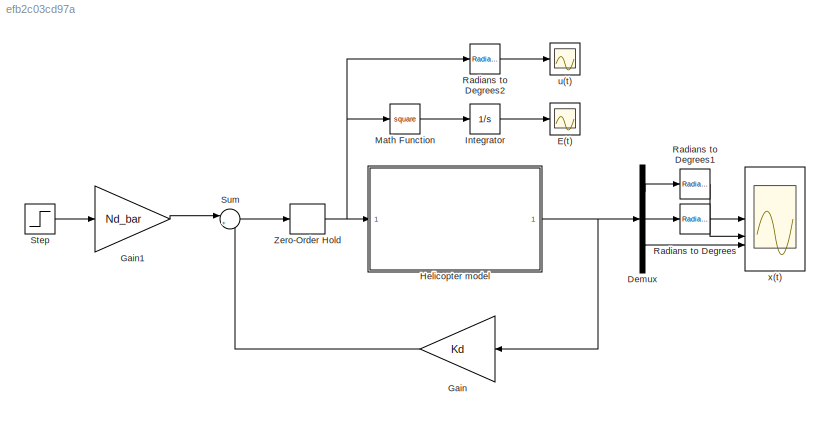
MODEL slx_efb2c03cd97a
KIND model
CONFIG AbsTol = auto
CONFIG EnableMultiTasking = off
CONFIG FixedStep = 0.01
CONFIG MaxStep = auto
CONFIG MinStep = auto
CONFIG RelTol = 1e-3
CONFIG SampleTimeConstraint = Unconstrained
CONFIG SolverName = ode3
CONFIG StartTime = 0.0
CONFIG StopTime = 20
BLOCK [Demux] Demux
  Outputs = 3
BLOCK [Scope] E(t)
  Floating = off
  NumInputPorts = 1
  ScopeSpecificationString = Simulink.scopes.TimeScopeBlockCfg('CurrentConfiguration', extmgr.ConfigurationSet(extmgr.Configuration('Core','General UI',true),extmgr.Configuration('Core','Source UI',true),extmgr.Configuration('Sources','WiredSimulink',true,'DataLoggingVariableName','ScopeData2'),extmgr.Configuration('Visuals','Time Domain',true,'SerializedDisplays',{struct('MinYLimReal','-0.02578','MaxYLimReal','0.23198','YLab...<+1424ch>
BLOCK [Gain] Gain
  Gain = Kd
  Multiplication = Matrix(K*u) (u vector)
BLOCK [Gain] Gain1
  Gain = Nd_bar
  Multiplication = Matrix(K*u) (u vector)
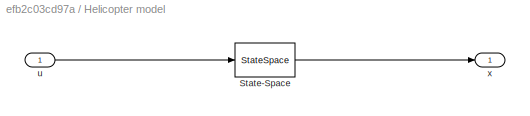
BLOCK [SubSystem] Helicopter model
BLOCK [StateSpace] Helicopter model/State-Space
  A = A
  B = B
  C = eye(3)
  D = zeros(3,1)
  InitialCondition = [0;0;0]
BLOCK [Inport] Helicopter model/u
BLOCK [Outport] Helicopter model/x
BLOCK [Integrator] Integrator
BLOCK [Math] Math Function
  Operator = square
BLOCK [Reference] Radians to Degrees  REF=simulink_extras/Transformations/Radians
to Degrees
  SourceBlock = simulink_extras/Transformations/Radians\nto Degrees
  SourceType = RadiansToDegrees
BLOCK [Reference] Radians to Degrees1  REF=simulink_extras/Transformations/Radians
to Degrees
  SourceBlock = simulink_extras/Transformations/Radians\nto Degrees
  SourceType = RadiansToDegrees
BLOCK [Reference] Radians to Degrees2  REF=simulink_extras/Transformations/Radians
to Degrees
  SourceBlock = simulink_extras/Transformations/Radians\nto Degrees
  SourceType = RadiansToDegrees
BLOCK [Step] Step
  After = 10
  SampleTime = 0
BLOCK [Sum] Sum
  Inputs = |+-
BLOCK [ZeroOrderHold] Zero-Order Hold
  SampleTime = 10*Ts
BLOCK [Scope] u(t)
  Floating = off
  NumInputPorts = 1
  ScopeSpecificationString = Simulink.scopes.TimeScopeBlockCfg('CurrentConfiguration', extmgr.ConfigurationSet(extmgr.Configuration('Core','General UI',true),extmgr.Configuration('Core','Source UI',true),extmgr.Configuration('Sources','WiredSimulink',true,'DataLoggingVariableName','ScopeData1'),extmgr.Configuration('Visuals','Time Domain',true,'SerializedDisplays',{struct('MinYLimReal','-24.53129','MaxYLimReal','57.01001','YL...<+1485ch>
BLOCK [Scope] x(t)
  Floating = off
  NumInputPorts = 3
  ScopeSpecificationString = Simulink.scopes.TimeScopeBlockCfg('CurrentConfiguration', extmgr.ConfigurationSet(extmgr.Configuration('Core','General UI',true),extmgr.Configuration('Core','Source UI',true),extmgr.Configuration('Sources','WiredSimulink',true),extmgr.Configuration('Visuals','Time Domain',true,'SerializedDisplays',{struct('MinYLimReal','-57.64387','MaxYLimReal','78.36342','YLabelReal','','MinYLimMag','0.00000','Ma...<+2735ch>
LINE Demux:1 -> Radians to Degrees1:1
LINE Demux:2 -> Radians to Degrees:1
LINE Demux:3 -> x(t):3
LINE Gain1:1 -> Sum:1
LINE Gain:1 -> Sum:2
LINE Helicopter model/State-Space:1 -> Helicopter model/x:1
LINE Helicopter model/u:1 -> Helicopter model/State-Space:1
NET Helicopter model:1 -> Demux:1, Gain:1
LINE Integrator:1 -> E(t):1
LINE Math Function:1 -> Integrator:1
LINE Radians to Degrees1:1 -> x(t):1
LINE Radians to Degrees2:1 -> u(t):1
LINE Radians to Degrees:1 -> x(t):2
LINE Step:1 -> Gain1:1
LINE Sum:1 -> Zero-Order Hold:1
NET Zero-Order Hold:1 -> Helicopter model:1, Math Function:1, Radians to Degrees2:1
note: NET lines group one-source signal fan-out (src -> all destinations, sorted); 1:1 wires keep LINE
